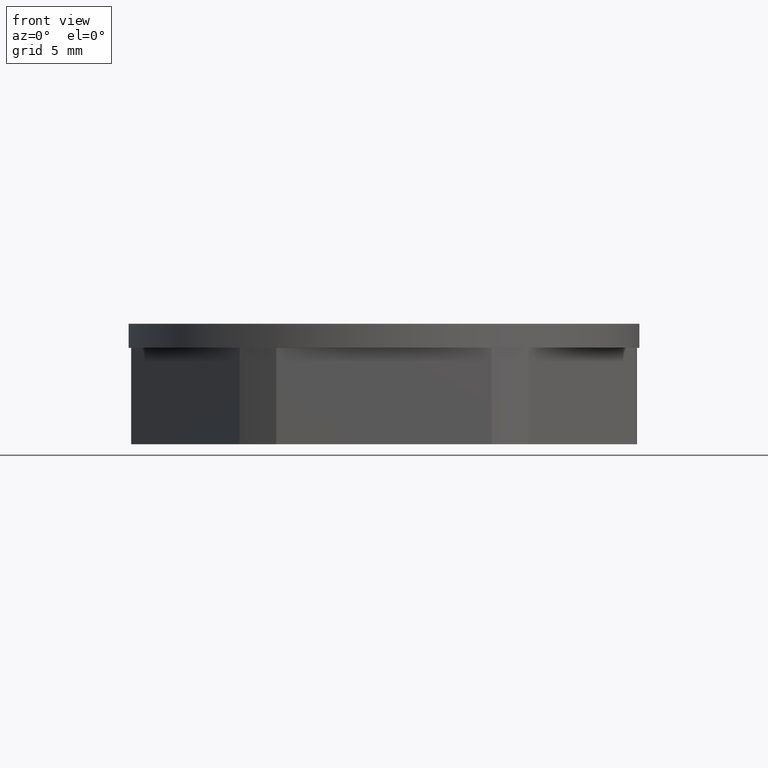
[diagram: clean part render]
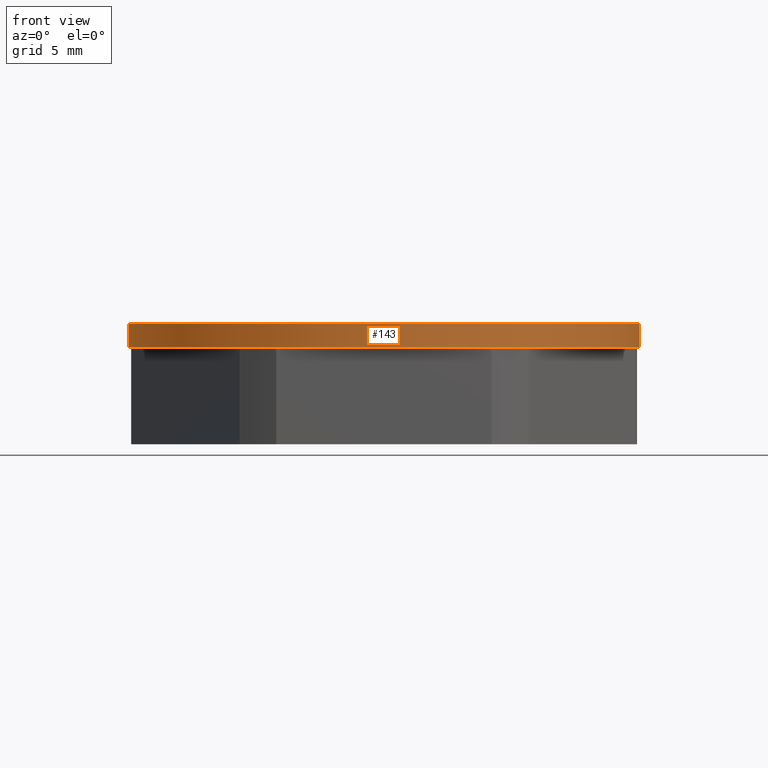
[diagram: same view with one face highlighted and labeled with its STEP entity id]
A machine part, front view. The second image highlights one B-rep face of the part: STEP entity #143.
In plain terms, the highlighted cylindrical surface (partial cylindrical patch) has radius 10.6 mm, axis along (0, 0, 1).
Its self-contained STEP definition (entity closure, byte-faithful):
#17 = AXIS2_PLACEMENT_3D ( 'NONE', #1380, #1349, #1384 ) ;
#47 = VECTOR ( 'NONE', #2105, 1000.000000000000000 ) ;
#74 = VECTOR ( 'NONE', #2252, 1000.000000000000000 ) ;
#82 = AXIS2_PLACEMENT_3D ( 'NONE', #2016, #2116, #2259 ) ;
#93 = CIRCLE ( 'NONE', #82, 10.60000000000000000 ) ;
#104 = CIRCLE ( 'NONE', #116, 10.60000000000000000 ) ;
#116 = AXIS2_PLACEMENT_3D ( 'NONE', #2395, #2376, #2378 ) ;
#143 = ADVANCED_FACE ( 'NONE', ( #1359 ), #1341, .T. ) ;
#188 = EDGE_CURVE ( 'NONE', #828, #822, #2098, .T. ) ;
#200 = EDGE_CURVE ( 'NONE', #844, #821, #2206, .T. ) ;
#223 = EDGE_CURVE ( 'NONE', #821, #822, #104, .T. ) ;
#229 = EDGE_CURVE ( 'NONE', #844, #828, #93, .T. ) ;
#262 = EDGE_LOOP ( 'NONE', ( #939, #919, #966, #958 ) ) ;
#821 = VERTEX_POINT ( 'NONE', #1273 ) ;
#822 = VERTEX_POINT ( 'NONE', #1265 ) ;
#828 = VERTEX_POINT ( 'NONE', #1230 ) ;
#844 = VERTEX_POINT ( 'NONE', #1226 ) ;
#919 = ORIENTED_EDGE ( 'NONE', *, *, #229, .T. ) ;
#939 = ORIENTED_EDGE ( 'NONE', *, *, #200, .F. ) ;
#958 = ORIENTED_EDGE ( 'NONE', *, *, #223, .F. ) ;
#966 = ORIENTED_EDGE ( 'NONE', *, *, #188, .T. ) ;
#1226 = CARTESIAN_POINT ( 'NONE',  ( -10.60000000000000000, 1.298125607096194400E-015, 4.000000000000000000 ) ) ;
#1230 = CARTESIAN_POINT ( 'NONE',  ( 10.60000000000000000, 0.0000000000000000000, 4.000000000000000000 ) ) ;
#1265 = CARTESIAN_POINT ( 'NONE',  ( 10.60000000000000000, 0.0000000000000000000, 5.000000000000000000 ) ) ;
#1273 = CARTESIAN_POINT ( 'NONE',  ( -10.60000000000000000, 1.298125607096194400E-015, 5.000000000000000000 ) ) ;
#1341 = CYLINDRICAL_SURFACE ( 'NONE', #17, 10.60000000000000000 ) ;
#1349 = DIRECTION ( 'NONE',  ( 0.0000000000000000000, 0.0000000000000000000, 1.000000000000000000 ) ) ;
#1359 = FACE_OUTER_BOUND ( 'NONE', #262, .T. ) ;
#1380 = CARTESIAN_POINT ( 'NONE',  ( 0.0000000000000000000, 0.0000000000000000000, 4.000000000000000000 ) ) ;
#1384 = DIRECTION ( 'NONE',  ( 1.000000000000000000, 0.0000000000000000000, 0.0000000000000000000 ) ) ;
#2016 = CARTESIAN_POINT ( 'NONE',  ( 0.0000000000000000000, 0.0000000000000000000, 4.000000000000000000 ) ) ;
#2098 = LINE ( 'NONE', #2124, #47 ) ;
#2105 = DIRECTION ( 'NONE',  ( 0.0000000000000000000, 0.0000000000000000000, 1.000000000000000000 ) ) ;
#2116 = DIRECTION ( 'NONE',  ( 0.0000000000000000000, 0.0000000000000000000, 1.000000000000000000 ) ) ;
#2124 = CARTESIAN_POINT ( 'NONE',  ( 10.60000000000000000, 0.0000000000000000000, 4.000000000000000000 ) ) ;
#2206 = LINE ( 'NONE', #2226, #74 ) ;
#2226 = CARTESIAN_POINT ( 'NONE',  ( -10.60000000000000000, 1.298125607096194400E-015, 4.000000000000000000 ) ) ;
#2252 = DIRECTION ( 'NONE',  ( 0.0000000000000000000, 0.0000000000000000000, 1.000000000000000000 ) ) ;
#2259 = DIRECTION ( 'NONE',  ( 1.000000000000000000, 0.0000000000000000000, 0.0000000000000000000 ) ) ;
#2376 = DIRECTION ( 'NONE',  ( 0.0000000000000000000, 0.0000000000000000000, 1.000000000000000000 ) ) ;
#2378 = DIRECTION ( 'NONE',  ( 1.000000000000000000, 0.0000000000000000000, 0.0000000000000000000 ) ) ;
#2395 = CARTESIAN_POINT ( 'NONE',  ( 0.0000000000000000000, 0.0000000000000000000, 5.000000000000000000 ) ) ;